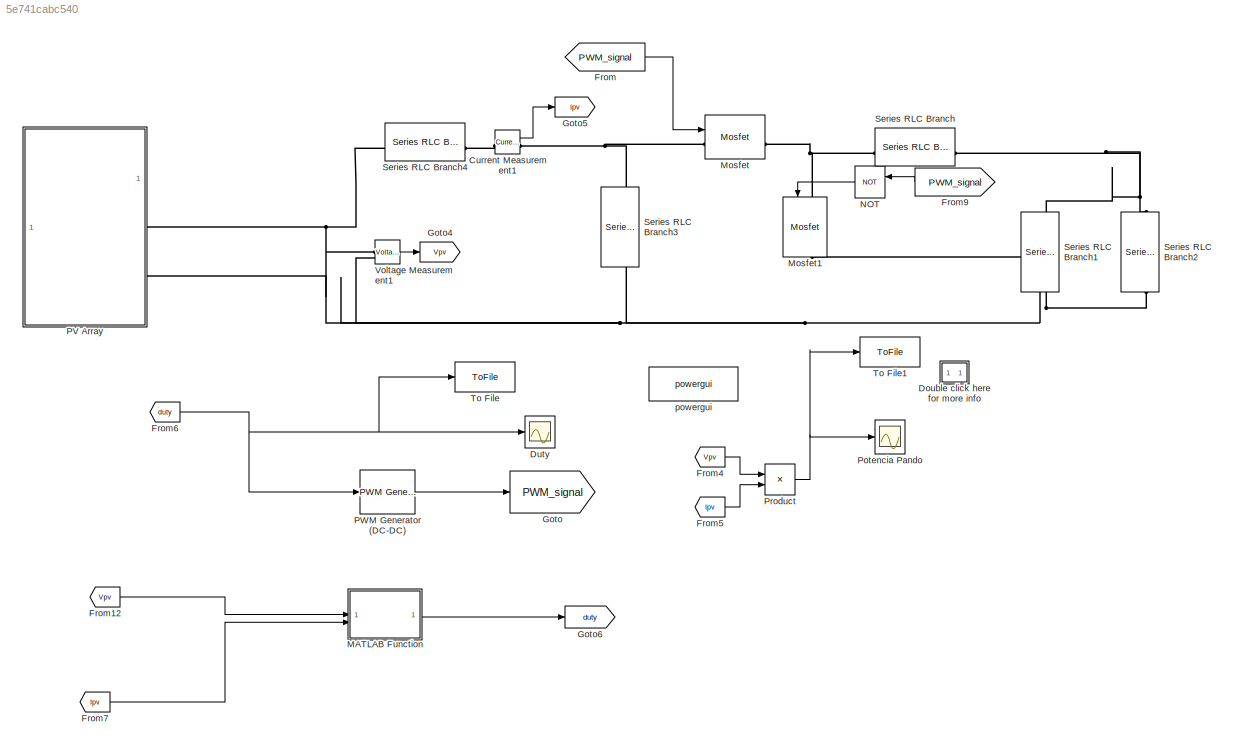
MODEL slx_5e741cabc540
KIND model
CONFIG AbsTol = auto
CONFIG EnableMultiTasking = off
CONFIG FixedStep = Ts_Power
CONFIG MaxStep = auto
CONFIG MinStep = auto
CONFIG RelTol = 1e-7
CONFIG SampleTimeConstraint = Unconstrained
CONFIG SolverName = ode23t
CONFIG StartTime = 0.0
CONFIG StopTime = 1
BLOCK [Reference] Current Measurement1  REF=spsCurrentMeasurementLib/Current Measurement
  SourceBlock = spsCurrentMeasurementLib/Current Measurement
  SourceType = Current Measurement
  UserDataPersistent = on
BLOCK [SubSystem] Double click here for more info
  OpenFcn = showdemo(bdroot(gcb))
BLOCK [Scope] Duty
  Floating = off
  NumInputPorts = 1
  ScopeSpecificationString = Simulink.scopes.TimeScopeBlockCfg('CurrentConfiguration', extmgr.ConfigurationSet(extmgr.Configuration('Core','General UI',true),extmgr.Configuration('Core','Source UI',true),extmgr.Configuration('Sources','WiredSimulink',true,'DataLoggingVariableName','DCPYO','DataLogging',true,'DataLoggingSaveFormat','StructureWithTime','SampleTime','0.0001'),extmgr.Configuration('Visuals','Time Domain',true,'Se...<+1818ch>
BLOCK [From] From
  GotoTag = PWM_signal
BLOCK [From] From12
  GotoTag = Vpv
BLOCK [From] From4
  GotoTag = Vpv
BLOCK [From] From5
  GotoTag = Ipv
BLOCK [From] From6
  GotoTag = duty
BLOCK [From] From7
  GotoTag = Ipv
BLOCK [From] From9
  GotoTag = PWM_signal
  NameLocation = top
BLOCK [Goto] Goto
  GotoTag = PWM_signal
BLOCK [Goto] Goto4
  GotoTag = Vpv
BLOCK [Goto] Goto5
  GotoTag = Ipv
BLOCK [Goto] Goto6
  GotoTag = duty
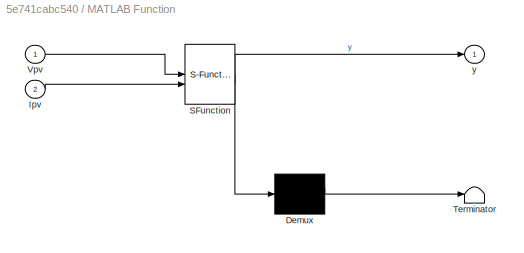
BLOCK [SubSystem] MATLAB Function
  ErrorFcn = Stateflow.Translate.translate
  PermitHierarchicalResolution = ExplicitOnly
  SFBlockType = MATLAB Function
  SystemSampleTime = Ts
  TreatAsAtomicUnit = on
BLOCK [Demux] MATLAB Function/ Demux 
  Outputs = 1
BLOCK [S-Function] MATLAB Function/ SFunction 
  EnableBusSupport = on
  FunctionName = sf_sfun
  PortCounts = [2 2]
  SFcnIsStateOwnerBlock = off
  SFunctionDeploymentMode = off
  Tag = Stateflow S-Function 2
BLOCK [Terminator] MATLAB Function/ Terminator 
BLOCK [Inport] MATLAB Function/Ipv
  Port = 2
BLOCK [Inport] MATLAB Function/Vpv
BLOCK [Outport] MATLAB Function/y
BLOCK [Reference] Mosfet  REF=spsMosfetLib/Mosfet
  SourceBlock = spsMosfetLib/Mosfet
  SourceType = Mosfet
BLOCK [Reference] Mosfet1  REF=spsMosfetLib/Mosfet
  NameLocation = left
  SourceBlock = spsMosfetLib/Mosfet
  SourceType = Mosfet
BLOCK [Logic] NOT
  AllPortsSameDT = off
  IconShape = distinctive
  NameLocation = top
  Operator = NOT
  OutDataTypeStr = boolean
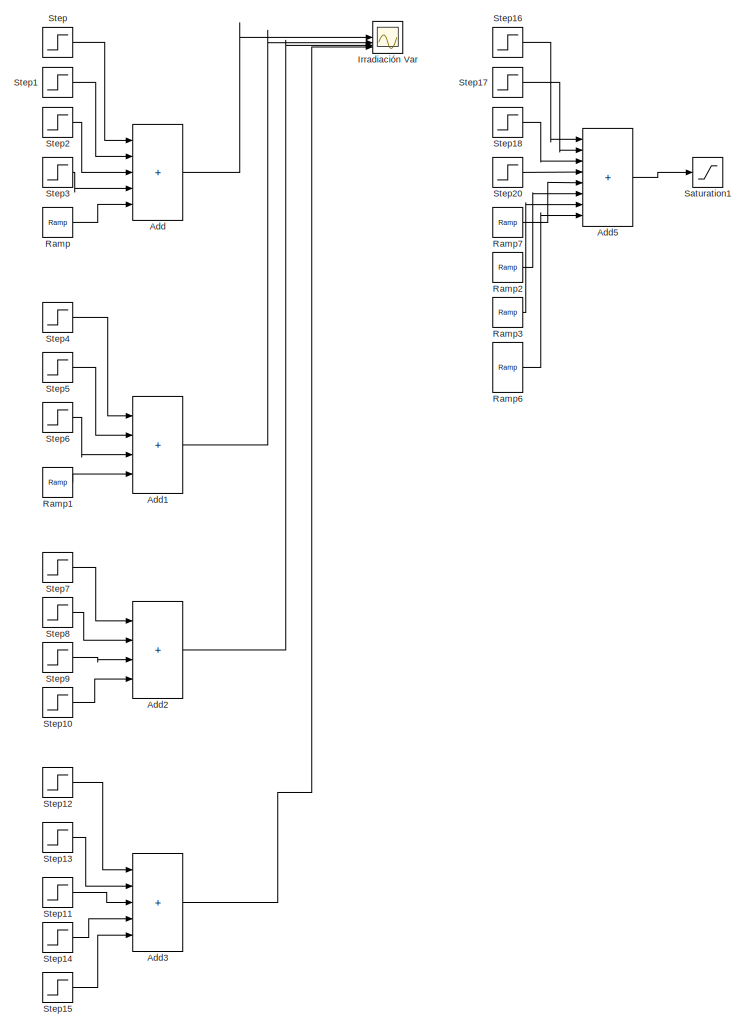
[diagram: PV Array - part 1/3, left side, full height]
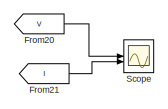
[diagram: PV Array - part 2/3, top right region]
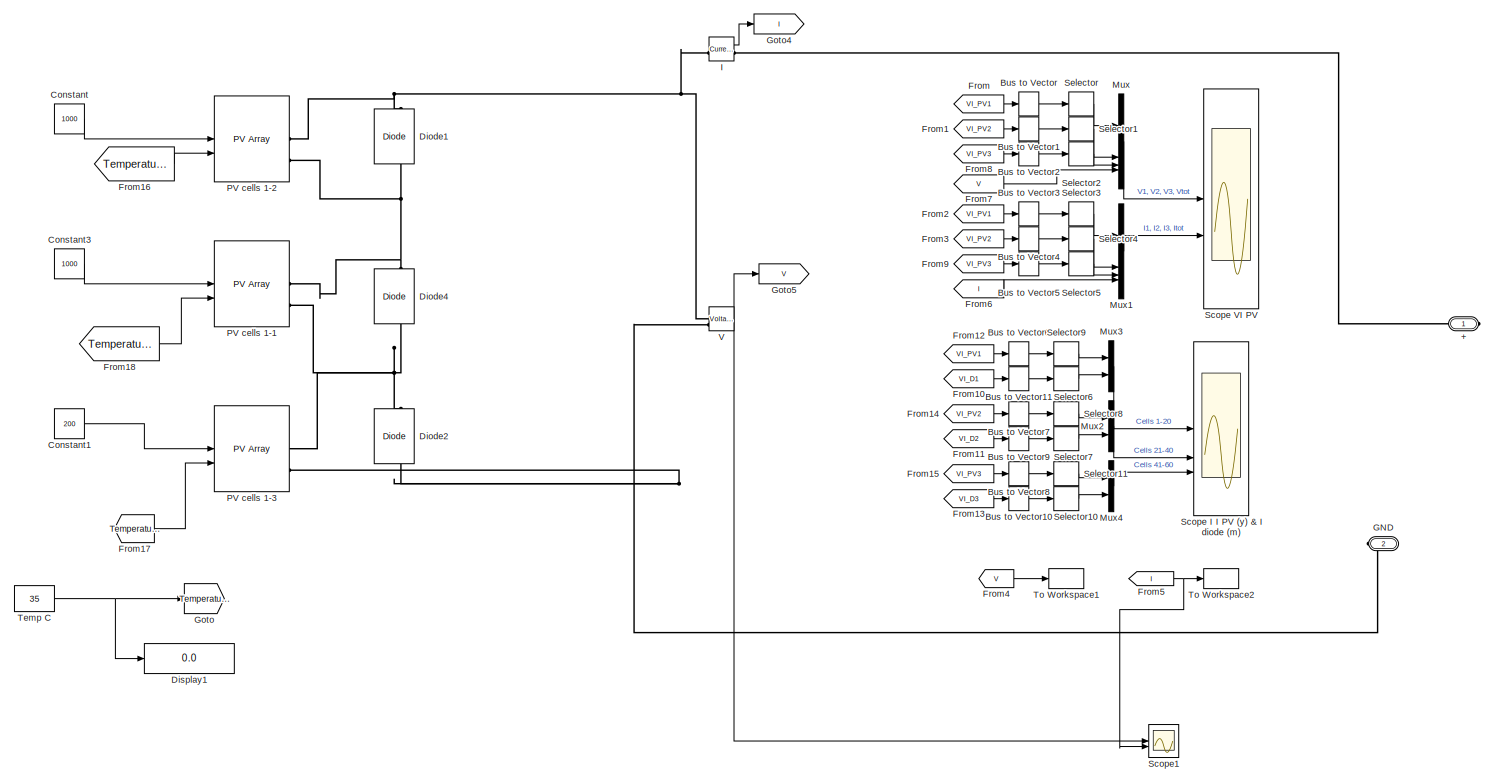
[diagram: PV Array - part 3/3, right side, full height]
BLOCK [SubSystem] PV Array
BLOCK [PMIOPort] PV Array/+
  Side = Right
BLOCK [Sum] PV Array/Add
  Commented = on
  IconShape = rectangular
  Inputs = +++++
BLOCK [Sum] PV Array/Add1
  Commented = on
  IconShape = rectangular
  Inputs = ++++
BLOCK [Sum] PV Array/Add2
  Commented = on
  IconShape = rectangular
  Inputs = ++++
BLOCK [Sum] PV Array/Add3
  Commented = on
  IconShape = rectangular
  Inputs = +++++
BLOCK [Sum] PV Array/Add5
  Commented = on
  IconShape = rectangular
  Inputs = ++++++++
BLOCK [BusToVector] PV Array/Bus to Vector
BLOCK [BusToVector] PV Array/Bus to Vector1
BLOCK [BusToVector] PV Array/Bus to Vector10
BLOCK [BusToVector] PV Array/Bus to Vector11
BLOCK [BusToVector] PV Array/Bus to Vector2
BLOCK [BusToVector] PV Array/Bus to Vector3
BLOCK [BusToVector] PV Array/Bus to Vector4
BLOCK [BusToVector] PV Array/Bus to Vector5
BLOCK [BusToVector] PV Array/Bus to Vector6
BLOCK [BusToVector] PV Array/Bus to Vector7
BLOCK [BusToVector] PV Array/Bus to Vector8
BLOCK [BusToVector] PV Array/Bus to Vector9
BLOCK [Constant] PV Array/Constant
  Value = 1000
BLOCK [Constant] PV Array/Constant1
  Value = 200
BLOCK [Constant] PV Array/Constant3
  Value = 1000
BLOCK [Reference] PV Array/Diode1  REF=spsDiodeLib/Diode
  NameLocation = right
  SourceBlock = spsDiodeLib/Diode
  SourceType = Diode
BLOCK [Reference] PV Array/Diode2  REF=spsDiodeLib/Diode
  NameLocation = right
  SourceBlock = spsDiodeLib/Diode
  SourceType = Diode
BLOCK [Reference] PV Array/Diode4  REF=spsDiodeLib/Diode
  NameLocation = right
  SourceBlock = spsDiodeLib/Diode
  SourceType = Diode
BLOCK [Display] PV Array/Display1
  Decimation = 1
BLOCK [From] PV Array/From
  GotoTag = VI_PV1
BLOCK [From] PV Array/From1
  GotoTag = VI_PV2
BLOCK [From] PV Array/From10
  GotoTag = VI_D1
BLOCK [From] PV Array/From11
  GotoTag = VI_D2
BLOCK [From] PV Array/From12
  GotoTag = VI_PV1
BLOCK [From] PV Array/From13
  GotoTag = VI_D3
BLOCK [From] PV Array/From14
  GotoTag = VI_PV2
BLOCK [From] PV Array/From15
  GotoTag = VI_PV3
BLOCK [From] PV Array/From16
  GotoTag = Temperature
BLOCK [From] PV Array/From17
  GotoTag = Temperature
BLOCK [From] PV Array/From18
  GotoTag = Temperature
BLOCK [From] PV Array/From2
  GotoTag = VI_PV1
BLOCK [From] PV Array/From20
  GotoTag = V
BLOCK [From] PV Array/From21
  GotoTag = I
BLOCK [From] PV Array/From3
  GotoTag = VI_PV2
BLOCK [From] PV Array/From4
  GotoTag = V
BLOCK [From] PV Array/From5
  GotoTag = I
BLOCK [From] PV Array/From6
  GotoTag = I
BLOCK [From] PV Array/From7
  GotoTag = V
BLOCK [From] PV Array/From8
  GotoTag = VI_PV3
BLOCK [From] PV Array/From9
  GotoTag = VI_PV3
BLOCK [PMIOPort] PV Array/GND
  Port = 2
  Side = Right
BLOCK [Goto] PV Array/Goto
  GotoTag = Temperature
BLOCK [Goto] PV Array/Goto4
  GotoTag = I
BLOCK [Goto] PV Array/Goto5
  GotoTag = V
BLOCK [Reference] PV Array/I  REF=spsCurrentMeasurementLib/Current Measurement
  SourceBlock = spsCurrentMeasurementLib/Current Measurement
  SourceType = Current Measurement
  UserDataPersistent = on
BLOCK [Scope] PV Array/Irradiación Var
  Commented = on
  Floating = off
  NumInputPorts = 4
  ScopeSpecificationString = Simulink.scopes.TimeScopeBlockCfg('CurrentConfiguration', extmgr.ConfigurationSet(extmgr.Configuration('Core','General UI',true,'FigureColor',[1 1 1]),extmgr.Configuration('Core','Source UI',true),extmgr.Configuration('Sources','WiredSimulink',true,'DataLoggingVariableName','ScopeData1'),extmgr.Configuration('Visuals','Time Domain',true,'SerializedDisplays',{struct('MinYLimReal','-12.5','MaxYLimRe...<+2248ch>
BLOCK [Mux] PV Array/Mux
  DisplayOption = bar
BLOCK [Mux] PV Array/Mux1
  DisplayOption = bar
BLOCK [Mux] PV Array/Mux2
  DisplayOption = bar
  Inputs = 2
BLOCK [Mux] PV Array/Mux3
  DisplayOption = bar
  Inputs = 2
BLOCK [Mux] PV Array/Mux4
  DisplayOption = bar
  Inputs = 2
BLOCK [Reference] PV Array/PV cells 1-1  REF=spsPVArrayLib/PV Array
  SourceBlock = spsPVArrayLib/PV Array
  SourceType = PV array
BLOCK [Reference] PV Array/PV cells 1-2  REF=spsPVArrayLib/PV Array
  SourceBlock = spsPVArrayLib/PV Array
  SourceType = PV array
BLOCK [Reference] PV Array/PV cells 1-3  REF=spsPVArrayLib/PV Array
  SourceBlock = spsPVArrayLib/PV Array
  SourceType = PV array
BLOCK [Reference] PV Array/Ramp  REF=simulink/Sources/Ramp
  Commented = on
  SourceBlock = simulink/Sources/Ramp
  SourceType = Ramp
BLOCK [Reference] PV Array/Ramp1  REF=simulink/Sources/Ramp
  Commented = on
  SourceBlock = simulink/Sources/Ramp
  SourceType = Ramp
BLOCK [Reference] PV Array/Ramp2  REF=simulink/Sources/Ramp
  Commented = on
  SourceBlock = simulink/Sources/Ramp
  SourceType = Ramp
BLOCK [Reference] PV Array/Ramp3  REF=simulink/Sources/Ramp
  Commented = on
  SourceBlock = simulink/Sources/Ramp
  SourceType = Ramp
BLOCK [Reference] PV Array/Ramp6  REF=simulink/Sources/Ramp
  Commented = on
  SourceBlock = simulink/Sources/Ramp
  SourceType = Ramp
BLOCK [Reference] PV Array/Ramp7  REF=simulink/Sources/Ramp
  Commented = on
  SourceBlock = simulink/Sources/Ramp
  SourceType = Ramp
BLOCK [Saturate] PV Array/Saturation1
  Commented = on
  LowerLimit = 0
  UpperLimit = 1000
BLOCK [Scope] PV Array/Scope
  Floating = off
  NumInputPorts = 2
  ScopeSpecificationString = Simulink.scopes.TimeScopeBlockCfg('CurrentConfiguration', extmgr.ConfigurationSet(extmgr.Configuration('Core','General UI',true),extmgr.Configuration('Core','Source UI',true),extmgr.Configuration('Sources','WiredSimulink',true,'DataLoggingVariableName','ScopeData1'),extmgr.Configuration('Visuals','Time Domain',true,'SerializedDisplays',{struct('MinYLimReal','-2.28578','MaxYLimReal','21.00539','YLa...<+1772ch>
BLOCK [Scope] PV Array/Scope I I PV (y) & I diode (m)
  Floating = off
  NumInputPorts = 3
  ScopeSpecificationString = Simulink.scopes.TimeScopeBlockCfg('CurrentConfiguration', extmgr.ConfigurationSet(extmgr.Configuration('Core','General UI',true),extmgr.Configuration('Core','Source UI',true),extmgr.Configuration('Sources','WiredSimulink',true,'DataLoggingVariableName','VI1','DataLoggingSaveFormat','StructureWithTime','SampleTime','5/1000','DataLoggingDecimation','1'),extmgr.Configuration('Visuals','Time Domain',t...<+3100ch>
BLOCK [Scope] PV Array/Scope VI PV
  Floating = off
  NumInputPorts = 2
  ScopeSpecificationString = Simulink.scopes.TimeScopeBlockCfg('CurrentConfiguration', extmgr.ConfigurationSet(extmgr.Configuration('Core','General UI',true),extmgr.Configuration('Core','Source UI',true),extmgr.Configuration('Sources','WiredSimulink',true,'DataLogging',true,'DataLoggingVariableName','VI','DataLoggingSaveFormat','StructureWithTime','SampleTime','5/1000','DataLoggingDecimation','1'),extmgr.Configuration('Visual...<+2847ch>
BLOCK [Scope] PV Array/Scope1
  Floating = off
  NumInputPorts = 2
  ScopeSpecificationString = Simulink.scopes.TimeScopeBlockCfg('CurrentConfiguration', extmgr.ConfigurationSet(extmgr.Configuration('Core','General UI',true),extmgr.Configuration('Core','Source UI',true),extmgr.Configuration('Sources','WiredSimulink',true,'DataLoggingVariableName','ScopeData2'),extmgr.Configuration('Visuals','Time Domain',true,'SerializedDisplays',{struct('MinYLimReal','-3.78303','MaxYLimReal','48.29867','YLa...<+1444ch>
BLOCK [Selector] PV Array/Selector
  IndexOptions = Index vector (dialog)
  Indices = [1]
  InputPortWidth = 2
  OutputSizes = 1
BLOCK [Selector] PV Array/Selector1
  IndexOptions = Index vector (dialog)
  Indices = [1]
  InputPortWidth = 2
  OutputSizes = 1
BLOCK [Selector] PV Array/Selector10
  IndexOptions = Index vector (dialog)
  Indices = [1]
  InputPortWidth = 2
  OutputSizes = 1
BLOCK [Selector] PV Array/Selector11
  IndexOptions = Index vector (dialog)
  Indices = [2]
  InputPortWidth = 2
  OutputSizes = 1
BLOCK [Selector] PV Array/Selector2
  IndexOptions = Index vector (dialog)
  Indices = [1]
  InputPortWidth = 2
  OutputSizes = 1
BLOCK [Selector] PV Array/Selector3
  IndexOptions = Index vector (dialog)
  Indices = [2]
  InputPortWidth = 2
  OutputSizes = 1
BLOCK [Selector] PV Array/Selector4
  IndexOptions = Index vector (dialog)
  Indices = [2]
  InputPortWidth = 2
  OutputSizes = 1
BLOCK [Selector] PV Array/Selector5
  IndexOptions = Index vector (dialog)
  Indices = [2]
  InputPortWidth = 2
  OutputSizes = 1
BLOCK [Selector] PV Array/Selector6
  IndexOptions = Index vector (dialog)
  Indices = [1]
  InputPortWidth = 2
  OutputSizes = 1
BLOCK [Selector] PV Array/Selector7
  IndexOptions = Index vector (dialog)
  Indices = [1]
  InputPortWidth = 2
  OutputSizes = 1
BLOCK [Selector] PV Array/Selector8
  IndexOptions = Index vector (dialog)
  Indices = [2]
  InputPortWidth = 2
  OutputSizes = 1
BLOCK [Selector] PV Array/Selector9
  IndexOptions = Index vector (dialog)
  Indices = [2]
  InputPortWidth = 2
  OutputSizes = 1
BLOCK [Step] PV Array/Step
  After = 1000
  Commented = on
  SampleTime = 0
  Time = 0
BLOCK [Step] PV Array/Step1
  After = -100
  Commented = on
  SampleTime = 0
BLOCK [Step] PV Array/Step10
  After = 250
  Commented = on
  SampleTime = 0
  Time = 2
BLOCK [Step] PV Array/Step11
  After = 100
  Commented = on
  SampleTime = 0
BLOCK [Step] PV Array/Step12
  After = 1000
  Commented = on
  SampleTime = 0
  Time = 0
BLOCK [Step] PV Array/Step13
  After = -800
  Commented = on
  SampleTime = 0
  Time = 0.5
BLOCK [Step] PV Array/Step14
  After = -200
  Commented = on
  SampleTime = 0
  Time = 1.5
BLOCK [Step] PV Array/Step15
  After = 200
  Commented = on
  SampleTime = 0
  Time = 2
BLOCK [Step] PV Array/Step16
  After = 1000
  Commented = on
  SampleTime = 0
  Time = 0
BLOCK [Step] PV Array/Step17
  After = -100
  Commented = on
  SampleTime = 0
BLOCK [Step] PV Array/Step18
  After = -100
  Commented = on
  SampleTime = 0
  Time = 1.5
BLOCK [Step] PV Array/Step2
  After = -100
  Commented = on
  SampleTime = 0
  Time = 1.5
BLOCK [Step] PV Array/Step20
  After = -300
  Commented = on
  SampleTime = 0
  Time = 2
BLOCK [Step] PV Array/Step3
  After = -300
  Commented = on
  SampleTime = 0
  Time = 2
BLOCK [Step] PV Array/Step4
  After = 1000
  Commented = on
  SampleTime = 0
  Time = 0
BLOCK [Step] PV Array/Step5
  After = -100
  Commented = on
  SampleTime = 0
BLOCK [Step] PV Array/Step6
  After = -400
  Commented = on
  SampleTime = 0
  Time = 1.5
BLOCK [Step] PV Array/Step7
  After = 1000
  Commented = on
  SampleTime = 0
  Time = 0
BLOCK [Step] PV Array/Step8
  After = -700
  Commented = on
  SampleTime = 0
BLOCK [Step] PV Array/Step9
  After = -150
  Commented = on
  SampleTime = 0
  Time = 1.5
BLOCK [Constant] PV Array/Temp C
  Value = 35
BLOCK [ToWorkspace] PV Array/To Workspace1
  FixptAsFi = on
  MaxDataPoints = inf
  SampleTime = 1e-3
  VariableName = V
BLOCK [ToWorkspace] PV Array/To Workspace2
  FixptAsFi = on
  MaxDataPoints = inf
  SampleTime = 1e-3
  VariableName = I
BLOCK [Reference] PV Array/V  REF=spsVoltageMeasurementLib/Voltage Measurement
  SourceBlock = spsVoltageMeasurementLib/Voltage Measurement
  SourceType = Voltage Measurement
  UserDataPersistent = on
BLOCK [Reference] PWM Generator (DC-DC)  REF=spsPWMGeneratorDCDCLib/PWM Generator
(DC-DC)
  SourceBlock = spsPWMGeneratorDCDCLib/PWM Generator\n(DC-DC)
  SourceType = PWM Generator (DC-DC)
BLOCK [Scope] Potencia Pando
  Floating = off
  NumInputPorts = 1
  ScopeSpecificationString = Simulink.scopes.TimeScopeBlockCfg('CurrentConfiguration', extmgr.ConfigurationSet(extmgr.Configuration('Core','General UI',true),extmgr.Configuration('Core','Source UI',true),extmgr.Configuration('Sources','WiredSimulink',true,'DataLoggingVariableName','ScopeData1','DataLogging',true,'DataLoggingSaveFormat','StructureWithTime','SampleTime','0.0001'),extmgr.Configuration('Visuals','Time Domain',tru...<+1836ch>
BLOCK [Product] Product
BLOCK [Reference] Series RLC Branch  REF=spsSeriesRLCBranchLib/Series RLC Branch
  SourceBlock = spsSeriesRLCBranchLib/Series RLC Branch
  SourceType = Series RLC Branch
BLOCK [Reference] Series RLC Branch1  REF=spsSeriesRLCBranchLib/Series RLC Branch
  NameLocation = left
  SourceBlock = spsSeriesRLCBranchLib/Series RLC Branch
  SourceType = Series RLC Branch
BLOCK [Reference] Series RLC Branch2  REF=spsSeriesRLCBranchLib/Series RLC Branch
  NameLocation = left
  SourceBlock = spsSeriesRLCBranchLib/Series RLC Branch
  SourceType = Series RLC Branch
BLOCK [Reference] Series RLC Branch3  REF=spsSeriesRLCBranchLib/Series RLC Branch
  NameLocation = left
  SourceBlock = spsSeriesRLCBranchLib/Series RLC Branch
  SourceType = Series RLC Branch
BLOCK [Reference] Series RLC Branch4  REF=spsSeriesRLCBranchLib/Series RLC Branch
  LibrarySourceBlock = sps_lib/Passives/Series RLC Branch
  SourceBlock = spsSeriesRLCBranchLib/Series RLC Branch
  SourceType = Series RLC Branch
BLOCK [ToFile] To File
  Filename = DC_PYO
  SampleTime = Ts
  SaveFormat = Timeseries
BLOCK [ToFile] To File1
  Filename = PYO.mat
  SaveFormat = Timeseries
BLOCK [Reference] Voltage Measurement1  REF=spsVoltageMeasurementLib/Voltage Measurement
  SourceBlock = spsVoltageMeasurementLib/Voltage Measurement
  SourceType = Voltage Measurement
  UserDataPersistent = on
BLOCK [Reference] powergui  REF=spspowerguiLib/powergui
  Priority = 1
  SourceBlock = spspowerguiLib/powergui
  SourceType = PSB option menu block
LINE Current Measurement1:1 -> Goto5:1
LINE From12:1 -> MATLAB Function:1
LINE From4:1 -> Product:1
LINE From5:1 -> Product:2
NET From6:1 -> Duty:1, PWM Generator (DC-DC):1, To File:1
LINE From7:1 -> MATLAB Function:2
LINE From9:1 -> NOT:1
LINE From:1 -> Mosfet:1
LINE MATLAB Function:1 -> Goto6:1
LINE NOT:1 -> Mosfet1:1
LINE PV Array/Add1:1 -> PV Array/Irradiación Var:2
LINE PV Array/Add2:1 -> PV Array/Irradiación Var:3
LINE PV Array/Add3:1 -> PV Array/Irradiación Var:4
LINE PV Array/Add5:1 -> PV Array/Saturation1:1
LINE PV Array/Add:1 -> PV Array/Irradiación Var:1
LINE PV Array/Bus to Vector10:1 -> PV Array/Selector10:1
LINE PV Array/Bus to Vector11:1 -> PV Array/Selector6:1
LINE PV Array/Bus to Vector1:1 -> PV Array/Selector1:1
LINE PV Array/Bus to Vector2:1 -> PV Array/Selector2:1
LINE PV Array/Bus to Vector3:1 -> PV Array/Selector3:1
LINE PV Array/Bus to Vector4:1 -> PV Array/Selector4:1
LINE PV Array/Bus to Vector5:1 -> PV Array/Selector5:1
LINE PV Array/Bus to Vector6:1 -> PV Array/Selector9:1
LINE PV Array/Bus to Vector7:1 -> PV Array/Selector8:1
LINE PV Array/Bus to Vector8:1 -> PV Array/Selector11:1
LINE PV Array/Bus to Vector9:1 -> PV Array/Selector7:1
LINE PV Array/Bus to Vector:1 -> PV Array/Selector:1
LINE PV Array/Constant1:1 -> PV Array/PV cells 1-3:1
LINE PV Array/Constant3:1 -> PV Array/PV cells 1-1:1
LINE PV Array/Constant:1 -> PV Array/PV cells 1-2:1
LINE PV Array/From10:1 -> PV Array/Bus to Vector11:1
LINE PV Array/From11:1 -> PV Array/Bus to Vector9:1
LINE PV Array/From12:1 -> PV Array/Bus to Vector6:1
LINE PV Array/From13:1 -> PV Array/Bus to Vector10:1
LINE PV Array/From14:1 -> PV Array/Bus to Vector7:1
LINE PV Array/From15:1 -> PV Array/Bus to Vector8:1
LINE PV Array/From16:1 -> PV Array/PV cells 1-2:2
LINE PV Array/From17:1 -> PV Array/PV cells 1-3:2
LINE PV Array/From18:1 -> PV Array/PV cells 1-1:2
LINE PV Array/From1:1 -> PV Array/Bus to Vector1:1
LINE PV Array/From20:1 -> PV Array/Scope:1
LINE PV Array/From21:1 -> PV Array/Scope:2
LINE PV Array/From2:1 -> PV Array/Bus to Vector3:1
LINE PV Array/From3:1 -> PV Array/Bus to Vector4:1
LINE PV Array/From4:1 -> PV Array/To Workspace1:1
NET PV Array/From5:1 -> PV Array/Scope1:2, PV Array/To Workspace2:1
LINE PV Array/From6:1 -> PV Array/Mux1:4
LINE PV Array/From7:1 -> PV Array/Mux:4
LINE PV Array/From8:1 -> PV Array/Bus to Vector2:1
LINE PV Array/From9:1 -> PV Array/Bus to Vector5:1
LINE PV Array/From:1 -> PV Array/Bus to Vector:1
LINE PV Array/I:1 -> PV Array/Goto4:1
LINE PV Array/Mux1:1 -> PV Array/Scope VI PV:2
LINE PV Array/Mux2:1 -> PV Array/Scope I I PV (y) & I diode (m):2
LINE PV Array/Mux3:1 -> PV Array/Scope I I PV (y) & I diode (m):1
LINE PV Array/Mux4:1 -> PV Array/Scope I I PV (y) & I diode (m):3
LINE PV Array/Mux:1 -> PV Array/Scope VI PV:1
LINE PV Array/Ramp1:1 -> PV Array/Add1:4
LINE PV Array/Ramp2:1 -> PV Array/Add5:6
LINE PV Array/Ramp3:1 -> PV Array/Add5:7
LINE PV Array/Ramp6:1 -> PV Array/Add5:8
LINE PV Array/Ramp7:1 -> PV Array/Add5:5
LINE PV Array/Ramp:1 -> PV Array/Add:5
LINE PV Array/Selector10:1 -> PV Array/Mux4:2
LINE PV Array/Selector11:1 -> PV Array/Mux4:1
LINE PV Array/Selector1:1 -> PV Array/Mux:2
LINE PV Array/Selector2:1 -> PV Array/Mux:3
LINE PV Array/Selector3:1 -> PV Array/Mux1:1
LINE PV Array/Selector4:1 -> PV Array/Mux1:2
LINE PV Array/Selector5:1 -> PV Array/Mux1:3
LINE PV Array/Selector6:1 -> PV Array/Mux3:2
LINE PV Array/Selector7:1 -> PV Array/Mux2:2
LINE PV Array/Selector8:1 -> PV Array/Mux2:1
LINE PV Array/Selector9:1 -> PV Array/Mux3:1
LINE PV Array/Selector:1 -> PV Array/Mux:1
LINE PV Array/Step10:1 -> PV Array/Add2:4
LINE PV Array/Step11:1 -> PV Array/Add3:3
LINE PV Array/Step12:1 -> PV Array/Add3:1
LINE PV Array/Step13:1 -> PV Array/Add3:2
LINE PV Array/Step14:1 -> PV Array/Add3:4
LINE PV Array/Step15:1 -> PV Array/Add3:5
LINE PV Array/Step16:1 -> PV Array/Add5:1
LINE PV Array/Step17:1 -> PV Array/Add5:2
LINE PV Array/Step18:1 -> PV Array/Add5:3
LINE PV Array/Step1:1 -> PV Array/Add:2
LINE PV Array/Step20:1 -> PV Array/Add5:4
LINE PV Array/Step2:1 -> PV Array/Add:3
LINE PV Array/Step3:1 -> PV Array/Add:4
LINE PV Array/Step4:1 -> PV Array/Add1:1
LINE PV Array/Step5:1 -> PV Array/Add1:2
LINE PV Array/Step6:1 -> PV Array/Add1:3
LINE PV Array/Step7:1 -> PV Array/Add2:1
LINE PV Array/Step8:1 -> PV Array/Add2:2
LINE PV Array/Step9:1 -> PV Array/Add2:3
LINE PV Array/Step:1 -> PV Array/Add:1
NET PV Array/Temp C:1 -> PV Array/Display1:1, PV Array/Goto:1
NET PV Array/V:1 -> PV Array/Goto5:1, PV Array/Scope1:1
LINE PWM Generator (DC-DC):1 -> Goto:1
NET Product:1 -> Potencia Pando:1, To File1:1
LINE Voltage Measurement1:1 -> Goto4:1
PLINE Current Measurement1:LConn1 -- Series RLC Branch4:RConn1
PNET net1: Current Measurement1:RConn1 -- Mosfet:LConn1 -- Series RLC Branch3:LConn1
PNET net2: Mosfet1:LConn1 -- Mosfet:RConn1 -- Series RLC Branch:LConn1
PNET net3: Mosfet1:RConn1 -- PV Array:RConn2 -- Series RLC Branch1:RConn1 -- Series RLC Branch2:RConn1 -- Series RLC Branch3:RConn1 -- Voltage Measurement1:LConn2
PLINE PV Array/+:RConn1 -- PV Array/I:RConn1
PNET net4: PV Array/Diode1:LConn1 -- PV Array/Diode4:RConn1 -- PV Array/PV cells 1-1:RConn1 -- PV Array/PV cells 1-2:RConn2
PNET net5: PV Array/Diode1:RConn1 -- PV Array/I:LConn1 -- PV Array/PV cells 1-2:RConn1 -- PV Array/V:LConn1
PNET net6: PV Array/Diode2:LConn1 -- PV Array/GND:RConn1 -- PV Array/PV cells 1-3:RConn2 -- PV Array/V:LConn2
PNET net7: PV Array/Diode2:RConn1 -- PV Array/Diode4:LConn1 -- PV Array/PV cells 1-1:RConn2 -- PV Array/PV cells 1-3:RConn1
PNET net8: PV Array:RConn1 -- Series RLC Branch4:LConn1 -- Voltage Measurement1:LConn1
PNET net9: Series RLC Branch1:LConn1 -- Series RLC Branch2:LConn1 -- Series RLC Branch:RConn1
note: NET lines group one-source signal fan-out (src -> all destinations, sorted); 1:1 wires keep LINE; PNET lines group multi-terminal physical nets as a canonical sorted terminal list (undirected conserving connections); 2-terminal nets keep the pairwise PLINE form
CHART MATLAB Function states=1 transitions=1
  STATE_LABEL 'eML_blk_kernel()'
  STATE_LABEL 'SCRIPT:\nfunction y = fcn(Vpv, Ipv)\n\npersistent Dprev Pprev Vprev\n\nPpv = Vpv*Ipv;\n\nif isempty(Dprev)\n    D = 0.2;\n    Dprev = D;\n    Vprev = Vpv;\n    Pprev = Ppv;\n    \nelse\n\ndeltaD = 0.03; %125e-6;\n\n% Calculate measured array power\nif (Ppv-Pprev)~= 0\n    if (Ppv - Pprev) > 0\n        if (Vpv - Vprev) > 0\n            D = Dprev - deltaD;\n        else\n            D = Dprev + deltaD;\n        end\n    els...<+257ch>'
CHART  states=0 transitions=0
